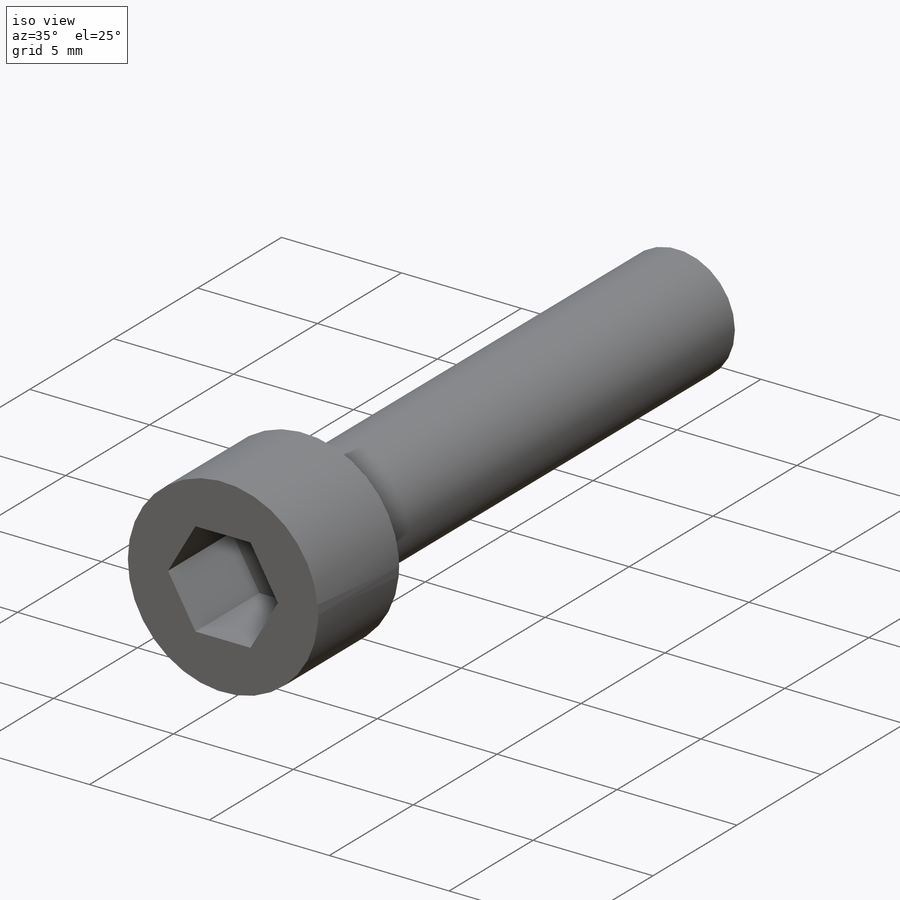
[diagram: iso view]
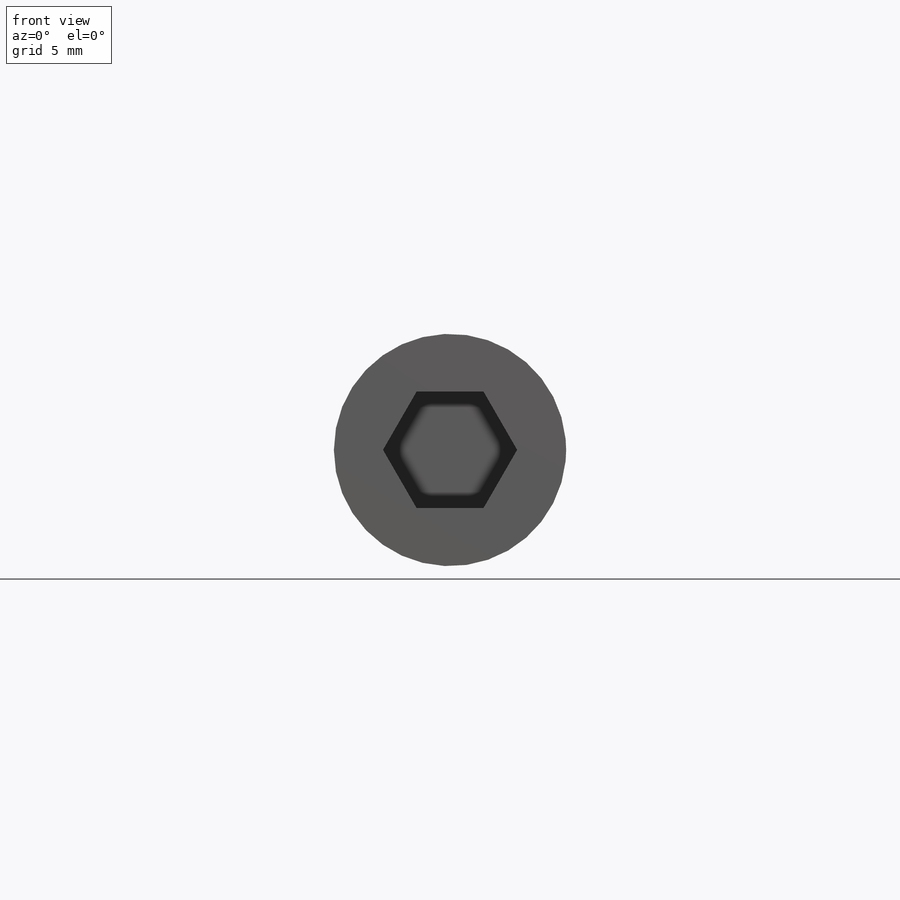
[diagram: front view]
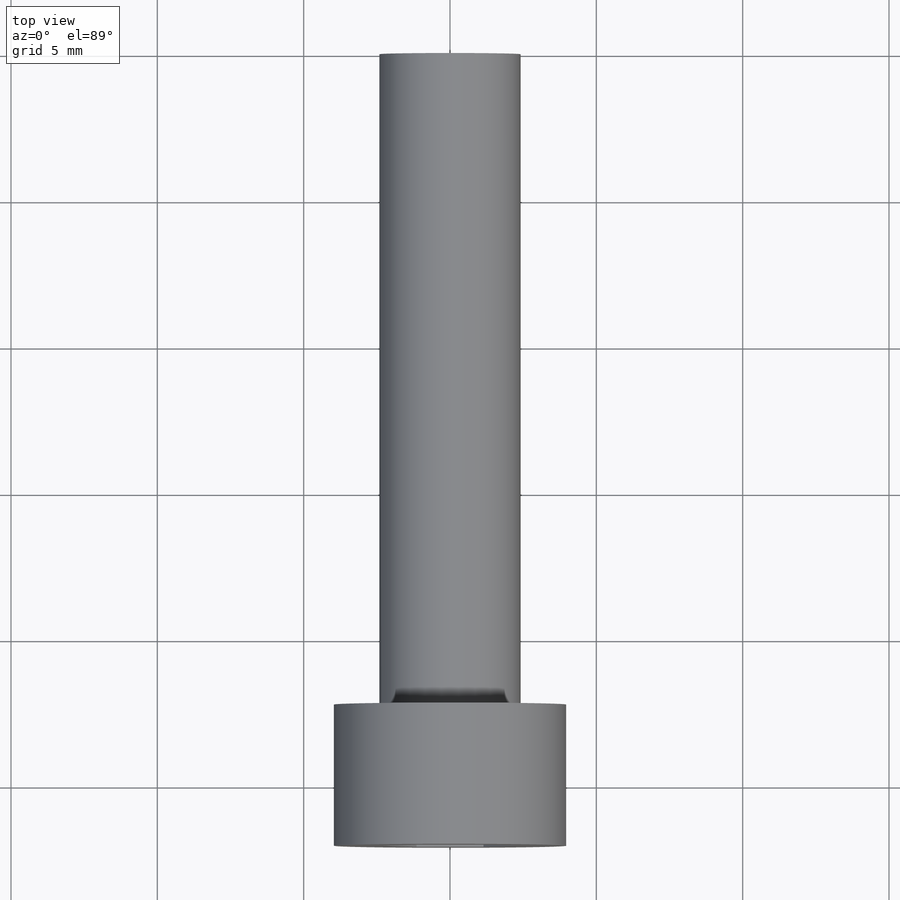
[diagram: top view]
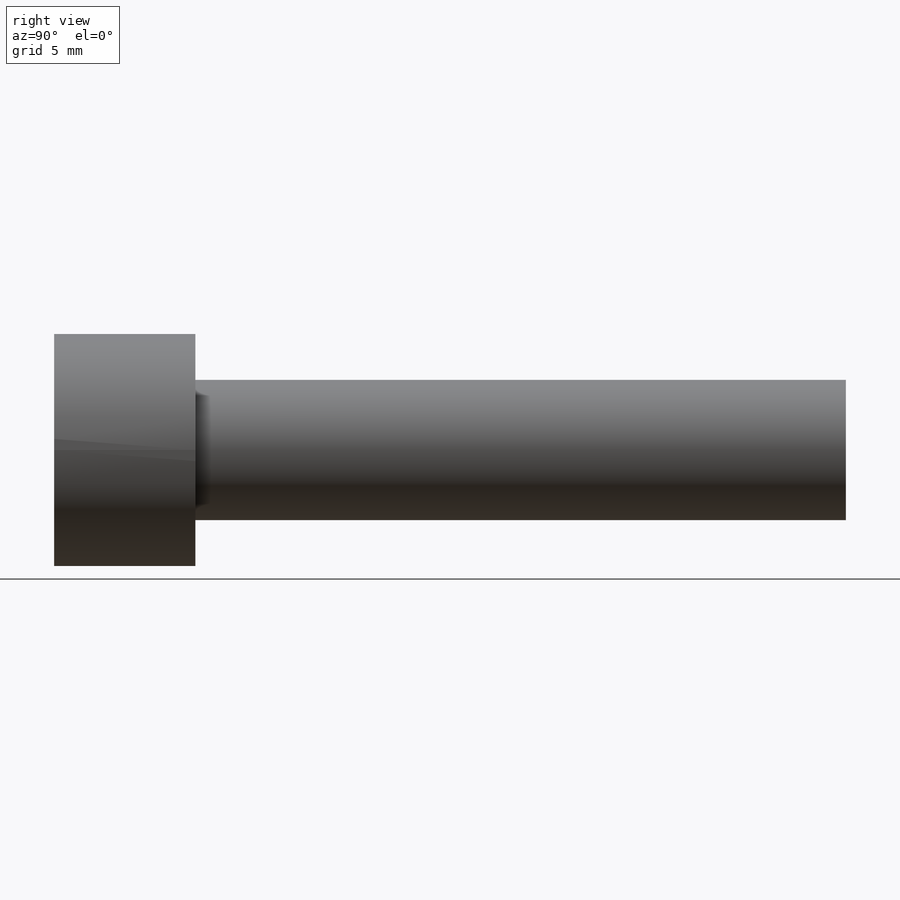
[diagram: right view]
SOLIDWORKS PART (.sldprt)
format: sldprt  version: not decoded by parser v0  size: 166,400 bytes
history: native  units: mm
features: sketch x3, extrude x2, material x1, cut_extrude x1 (+13 scaffold rows collapsed)
feature tree (20):
  scaffold x13  (default folders/planes/origin — collapsed)
  material  "Cast Alloy Steel"
  sketch  "Sketch1"  dims[D1=4.826mm]
  extrude  "Boss-Extrude1"  Depth=22.225mm
  sketch  "Sketch2"  dims[D1=7.9375mm]
  extrude  "Boss-Extrude2"  Depth=4.826mm
  sketch  "Sketch3"  dims[D1=~3.96875mm]
  cut_extrude  "Cut-Extrude1"  Depth=3.81mm
decode coverage: 6 of 6 modeling features carry decoded parameters
note: ~ marks probable driven/reference dimensions
note: suppression state not decoded; provenance and decode notes live in map.json
